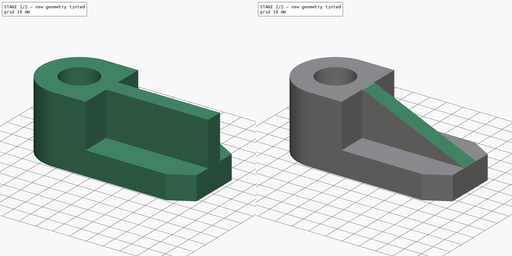
[diagram: build sequence overview — one tinted view per stage of 2, left to right]
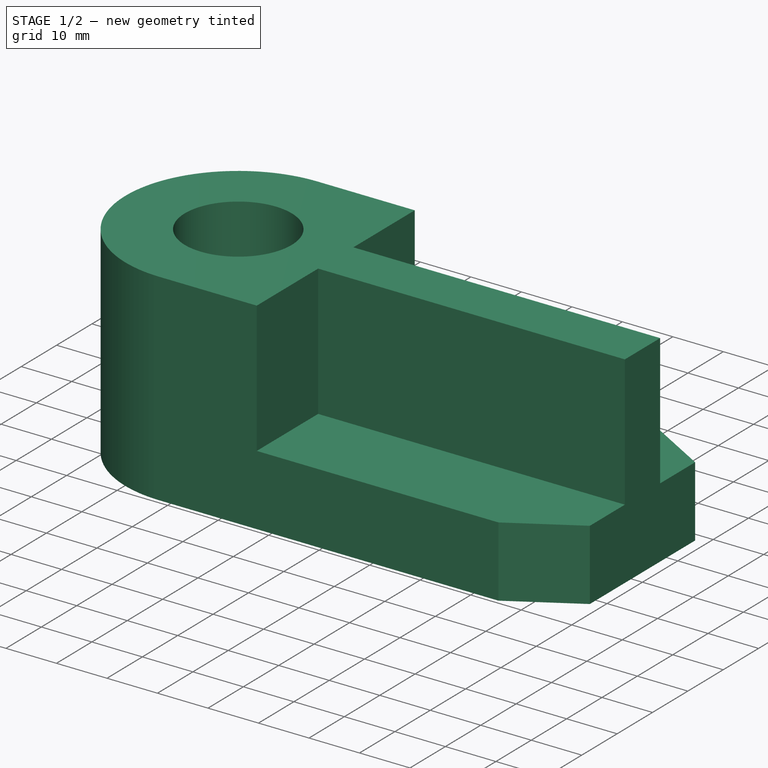
[diagram: stage 1 of 2 — iso view after this stage's code; geometry added in this stage tinted green]
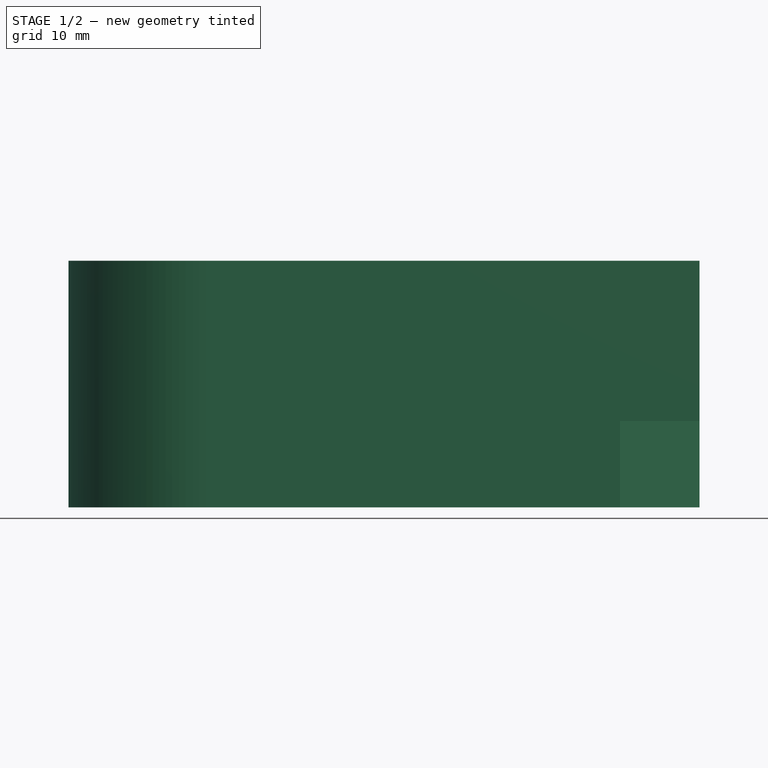
[diagram: stage 1 of 2 — front view after this stage's code; geometry added in this stage tinted green]
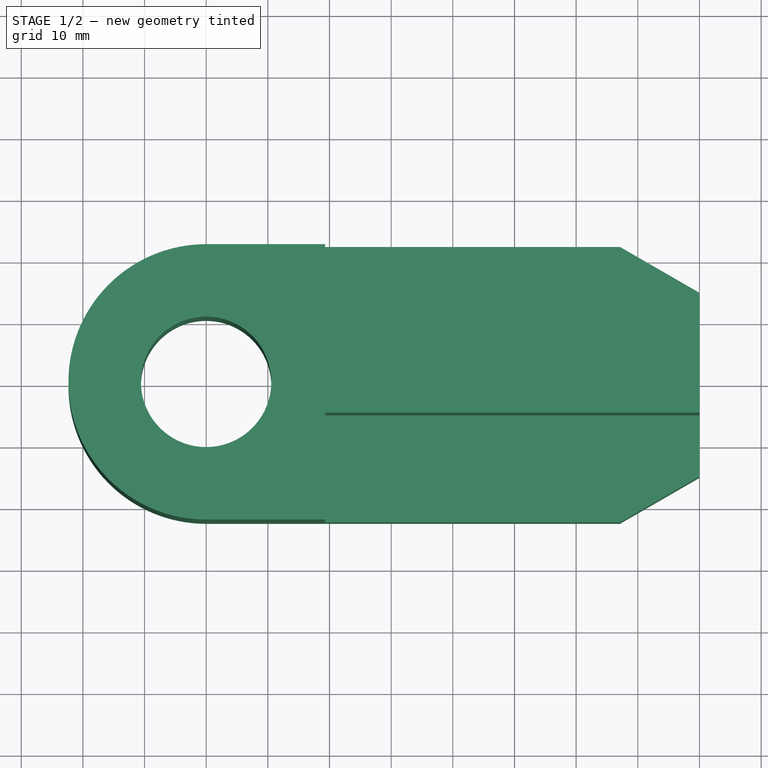
[diagram: stage 1 of 2 — top view after this stage's code; geometry added in this stage tinted green]
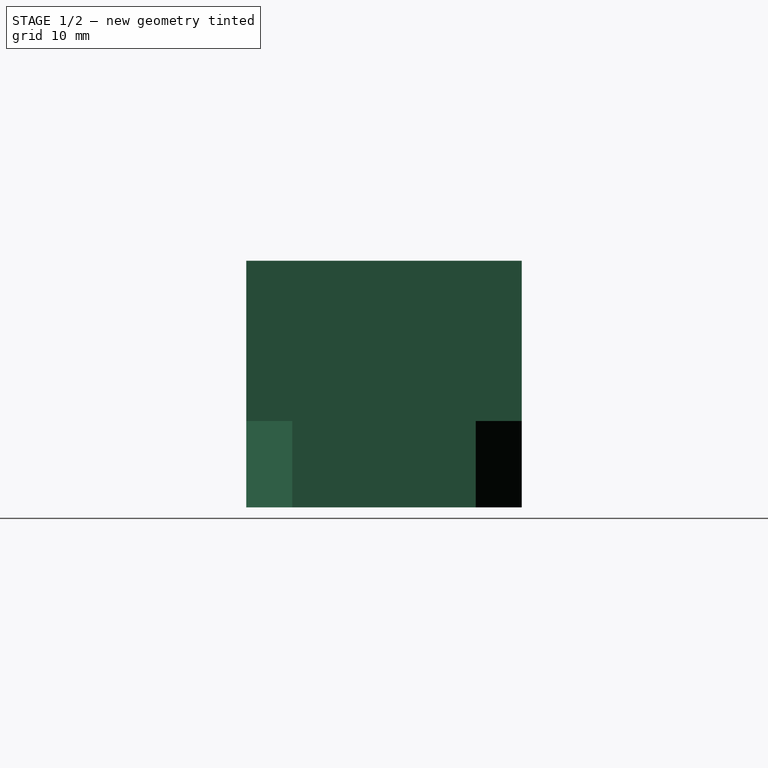
[diagram: stage 1 of 2 — right view after this stage's code; geometry added in this stage tinted green]
FCSTD DOCUMENT  (FreeCAD 0.21R33771 (Git))
Label: ex01
License: All rights reserved
LicenseURL: http://en.wikipedia.org/wiki/All_rights_reserved
objects: Sketcher::SketchObject×3, PartDesign::Pocket×2, PartDesign::Pad×1, PartDesign::Body×1
note: 10 computed .brp shape members not serialized (recipe doc carries the construction recipe); baked Part::Feature solids carry a one-line shape summary decoded from their .brp

FEATURE [Sketcher::SketchObject] Sketch
  FullyConstrained = false
  MapMode = 5
  Support = -> [XY_Plane]
  sketch-geometry (8):
    g0: ArcOfCircle CenterX=-40.0163 CenterY=0 CenterZ=0 NormalX=0 NormalY=0 NormalZ=1 AngleXU=0 Radius=22.3354 StartAngle=1.5708 EndAngle=4.71239
    g1: LineSegment StartX=40.0163 StartY=-14.8902 StartZ=0 EndX=40.0163 EndY=14.8902 EndZ=0
    g2: LineSegment StartX=27.121 StartY=22.3354 StartZ=0 EndX=-40.0163 EndY=22.3354 EndZ=0
    g3: LineSegment StartX=-40.0163 StartY=-22.3354 StartZ=0 EndX=27.121 EndY=-22.3354 EndZ=0
    g4: GeomPoint X=0 Y=0 Z=0
    g5: LineSegment StartX=40.0163 StartY=14.8902 StartZ=0 EndX=27.121 EndY=22.3354 EndZ=0
    g6: LineSegment StartX=27.121 StartY=-22.3354 StartZ=0 EndX=40.0163 EndY=-14.8902 EndZ=0
    g7: Circle CenterX=-40.0163 CenterY=0 CenterZ=0 NormalX=0 NormalY=0 NormalZ=1 AngleXU=0 Radius=10.5768
  constraints (10):
    c: PointOnObject(g0,g-1)
    c: Horizontal(g2)
    c: Horizontal(g3)
    c: Vertical(g1)
    c: Coincident(g4,g-1)
    c: PointOnObject(g5,g2)
    c: Coincident(g5,g1)
    c: Coincident(g1,g6)
    c: Coincident(g0,g2)
    c: Coincident(g7,g0)
FEATURE [PartDesign::Pad] Pad
  Direction = (0,0,1)
  Length = 40
  Length2 = 10
  Profile = -> Sketch
  ReferenceAxis = -> Sketch [N_Axis]
  Refine = true
  Type = 0
FEATURE [Sketcher::SketchObject] Sketch001
  FullyConstrained = false
  MapMode = 5
  Placement = pos=(0,0,40) rot=(0,0,1;0rad)
  Support = -> [Pad]
  sketch-geometry (11):
    g0: LineSegment StartX=53.2132 StartY=4.98679 StartZ=0 EndX=53.2132 EndY=26.9103 EndZ=0
    g1: LineSegment StartX=53.2132 StartY=26.9103 StartZ=0 EndX=-20.7188 EndY=26.9103 EndZ=0
    g2: LineSegment StartX=-20.7188 StartY=26.9103 StartZ=0 EndX=-20.7188 EndY=4.98679 EndZ=0
    g3: LineSegment StartX=-20.7188 StartY=4.98679 StartZ=0 EndX=53.2132 EndY=4.98679 EndZ=0
    g4: GeomPoint X=16.2472 Y=15.9486 Z=0
    g5: LineSegment StartX=49.7253 StartY=-24.4478 StartZ=0 EndX=49.7253 EndY=-4.98679 EndZ=0
    g6: LineSegment StartX=49.7253 StartY=-4.98679 StartZ=0 EndX=-20.7188 EndY=-4.98679 EndZ=0
    g7: LineSegment StartX=-20.7188 StartY=-4.98679 StartZ=0 EndX=-20.7188 EndY=-24.4478 EndZ=0
    g8: LineSegment StartX=-20.7188 StartY=-24.4478 StartZ=0 EndX=49.7253 EndY=-24.4478 EndZ=0
    g9: GeomPoint X=14.5033 Y=-14.7173 Z=0
    g10: LineSegment StartX=-20.7188 StartY=34.4988 StartZ=0 EndX=-20.7188 EndY=-31.8905 EndZ=0
  constraints (21):
    c: Coincident(g0,g1)
    c: Coincident(g1,g2)
    c: Coincident(g2,g3)
    c: Coincident(g3,g0)
    c: Horizontal(g1)
    c: Horizontal(g3)
    c: Vertical(g0)
    c: Vertical(g2)
    c: Symmetric(g1,g0,g4)
    c: Coincident(g5,g6)
    c: Coincident(g6,g7)
    c: Coincident(g7,g8)
    c: Coincident(g8,g5)
    c: Horizontal(g6)
    c: Horizontal(g8)
    c: Vertical(g5)
    c: Vertical(g7)
    c: Symmetric(g6,g5,g9)
    c: Vertical(g10)
    c: PointOnObject(g6,g10)
    c: Symmetric(g2,g6,g-1)
FEATURE [PartDesign::Pocket] Pocket
  BaseFeature = -> Pad
  Direction = (0,0,-1)
  Length = 26
  Length2 = 5
  Profile = -> Sketch001
  ReferenceAxis = -> Sketch001 [N_Axis]
  Refine = true
  Type = 0
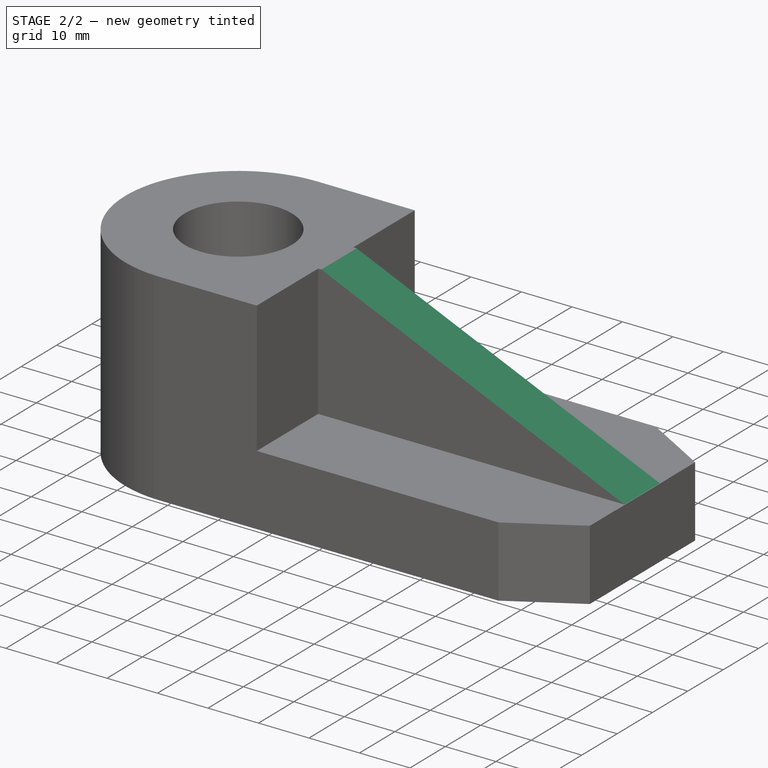
[diagram: stage 2 of 2 — iso view after this stage's code; geometry added in this stage tinted green]
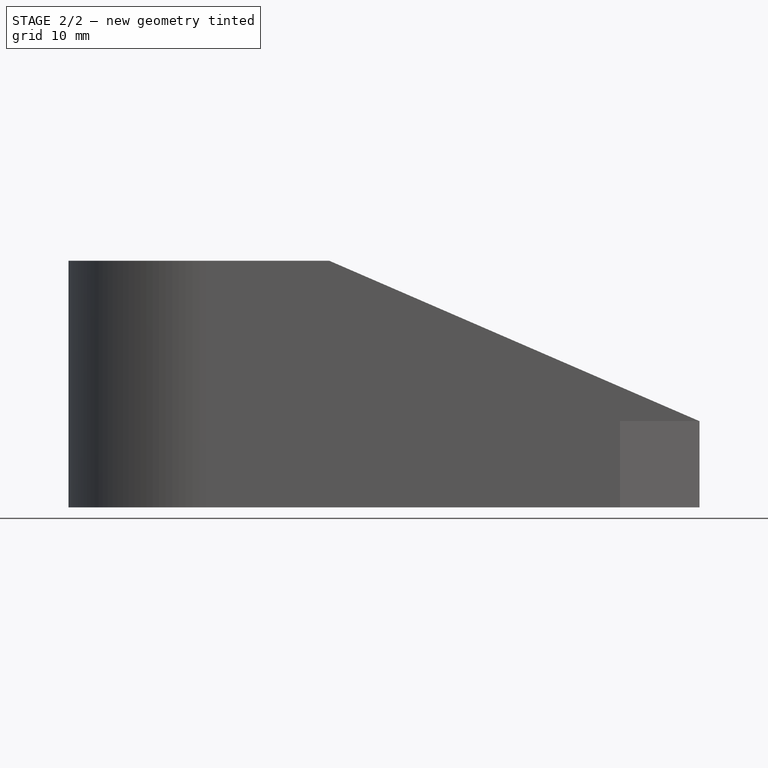
[diagram: stage 2 of 2 — front view after this stage's code; geometry added in this stage tinted green]
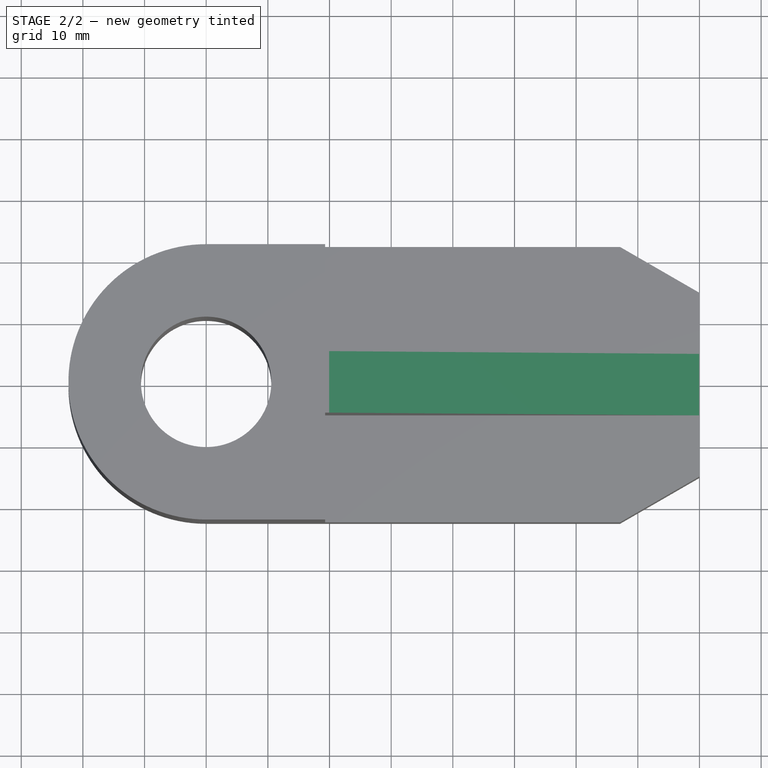
[diagram: stage 2 of 2 — top view after this stage's code; geometry added in this stage tinted green]
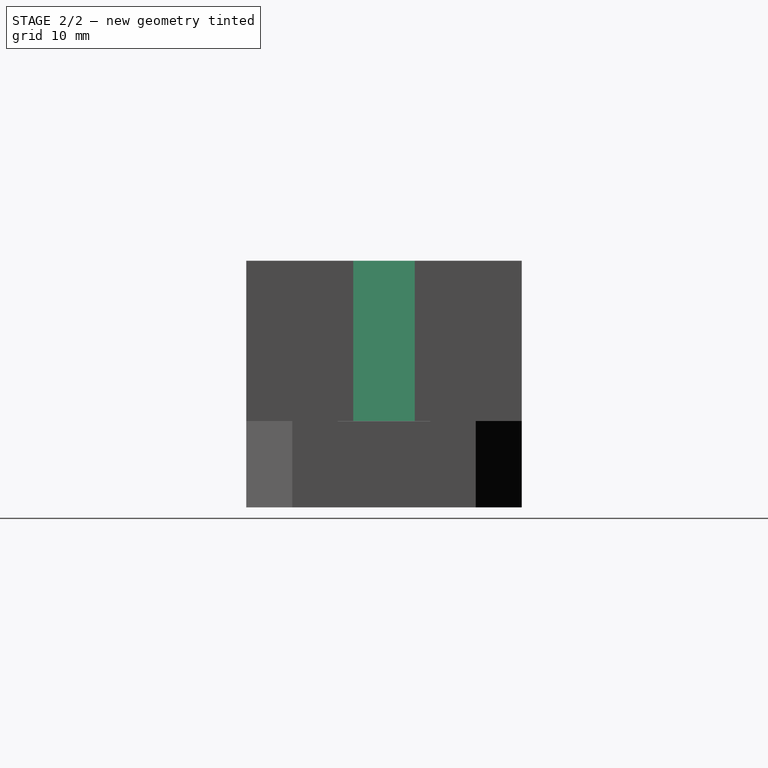
[diagram: stage 2 of 2 — right view after this stage's code; geometry added in this stage tinted green]
FEATURE [Sketcher::SketchObject] Sketch002
  FullyConstrained = false
  MapMode = 5
  Placement = pos=(0,0,0) rot=(1,0,0;1.5708rad)
  Support = -> [XZ_Plane]
  sketch-geometry (3):
    g0: LineSegment StartX=-37.9641 StartY=47.7554 StartZ=0 EndX=53.1593 EndY=8.2723 EndZ=0
    g1: LineSegment StartX=-37.9641 StartY=47.7554 StartZ=0 EndX=49.8133 EndY=47.7554 EndZ=0
    g2: LineSegment StartX=49.8133 StartY=47.7554 StartZ=0 EndX=53.1593 EndY=8.2723 EndZ=0
  constraints (4):
    c: Coincident(g1,g0)
    c: Horizontal(g1)
    c: Coincident(g2,g1)
    c: Coincident(g2,g0)
FEATURE [PartDesign::Pocket] Pocket001
  BaseFeature = -> Pocket
  Direction = (0,1,-2e-16)
  Length = 15
  Length2 = 5
  Midplane = true
  Profile = -> Sketch002
  ReferenceAxis = -> Sketch002 [N_Axis]
  Refine = true
  Type = 0
FEATURE [PartDesign::Body] Body
  Group = -> [Sketch,Pad,Sketch001,Pocket,Sketch002,Pocket001]
  Origin = -> Origin
  Tip = -> Pocket001
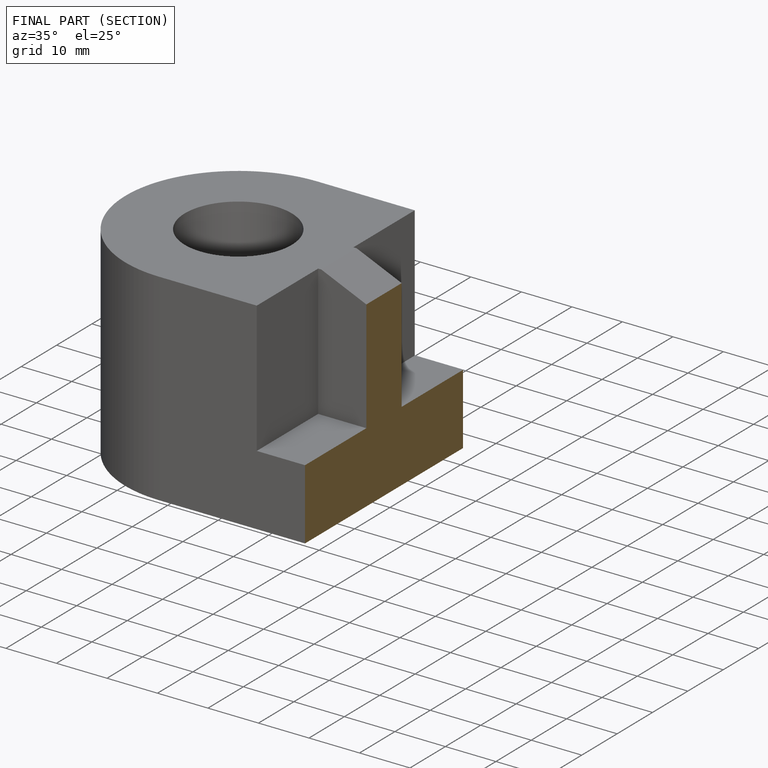
[diagram: finished part — half-section view (interior)]
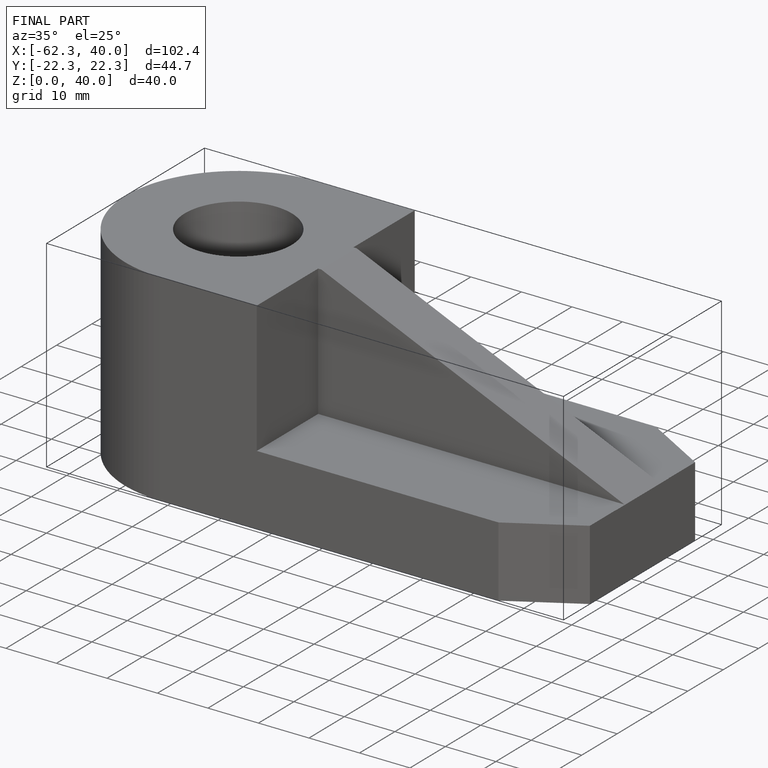
[diagram: finished part — iso view with bounding-box wireframe]
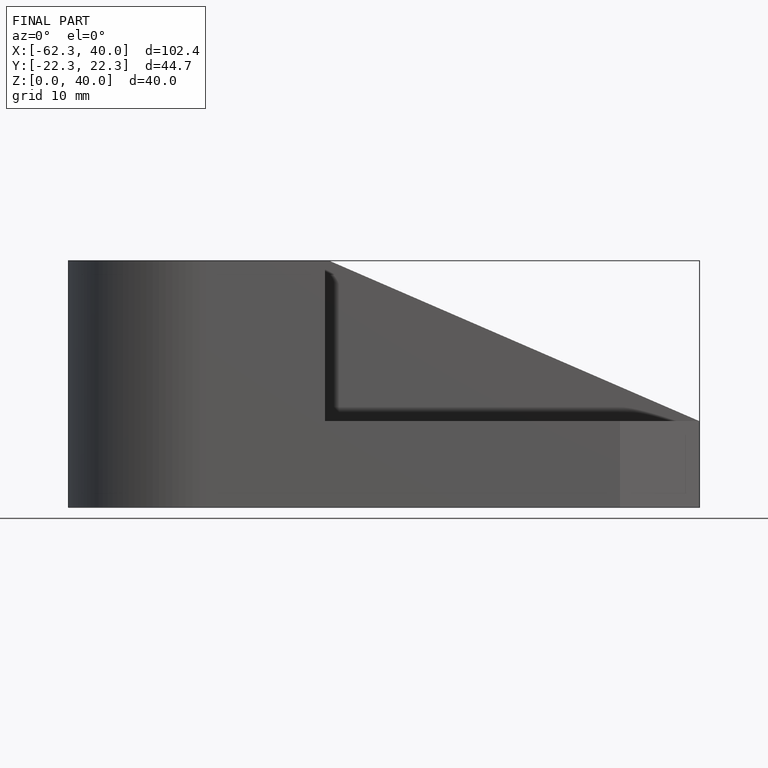
[diagram: finished part — front view with bounding-box wireframe]
